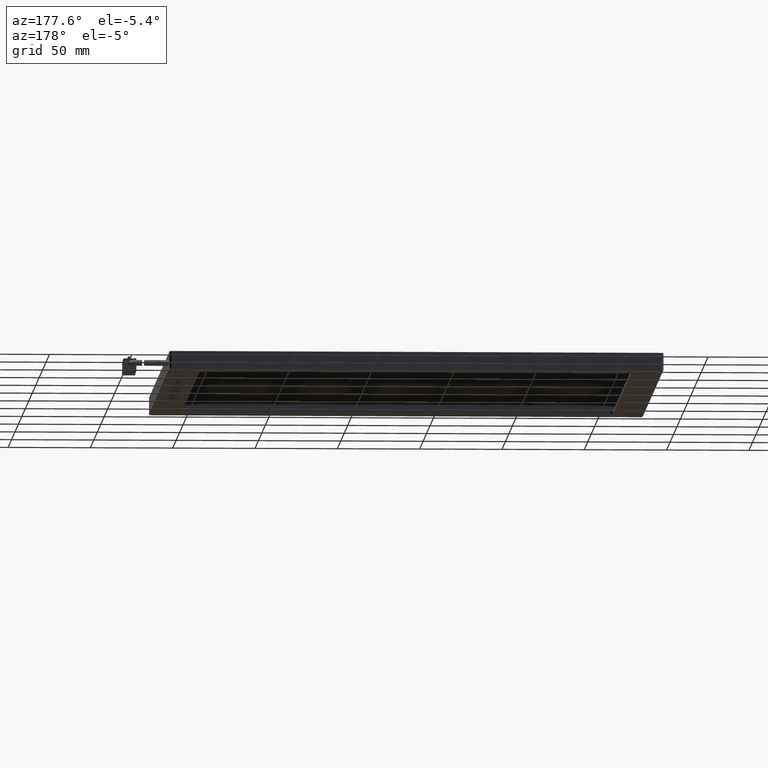
[diagram: clean part render]
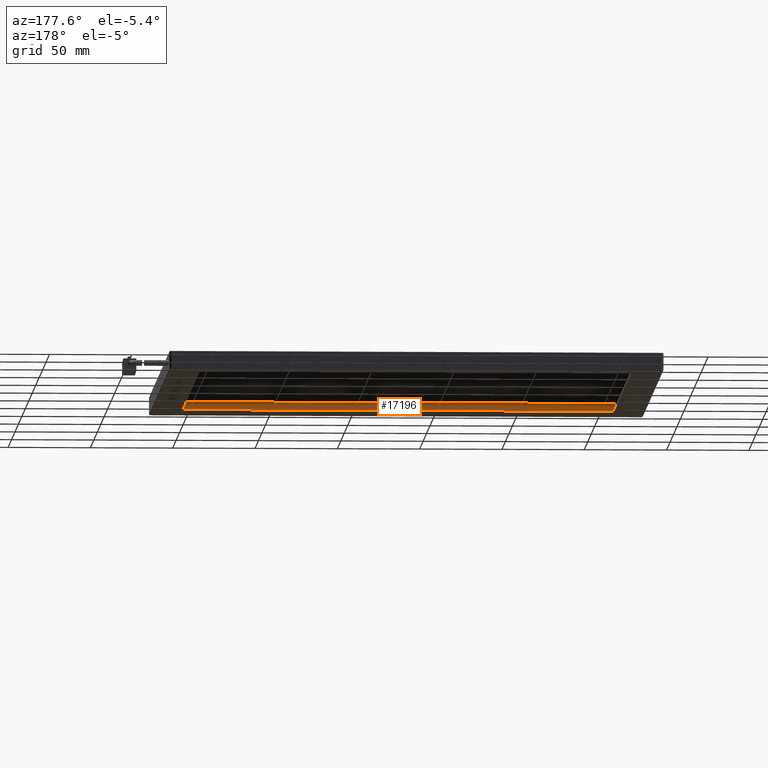
[diagram: same view with one face highlighted and labeled with its STEP entity id]
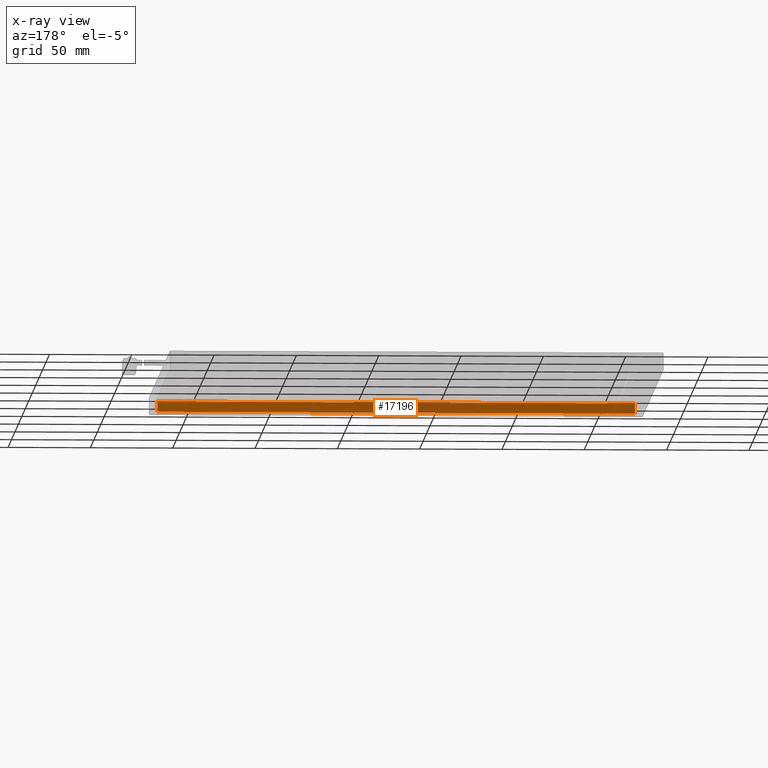
[diagram: x-ray of the same camera — body ghosted, the highlighted face saturated]
A machine part, auxiliary view. The second image highlights one B-rep face of the part: STEP entity #17196.
The next image is the same camera in x-ray: the body ghosted, the highlighted face saturated — about 6% of this face is hidden behind the body in this view.
In plain terms, the highlighted planar face has unit normal (0, -1, 0).
Its self-contained STEP definition (entity closure, byte-faithful):
#904 = PLANE ( 'NONE',  #10650 ) ;
#960 = DIRECTION ( 'NONE',  ( 0.0000000000000000000, -0.0000000000000000000, -1.000000000000000000 ) ) ;
#1209 = LINE ( 'NONE', #9630, #8976 ) ;
#1343 = DIRECTION ( 'NONE',  ( -0.0000000000000000000, 0.0000000000000000000, 1.000000000000000000 ) ) ;
#1470 = CARTESIAN_POINT ( 'NONE',  ( 115.2726522842640000, -106.5461928934010400, -1.200000000000067900 ) ) ;
#1660 = ORIENTED_EDGE ( 'NONE', *, *, #6332, .F. ) ;
#1907 = ORIENTED_EDGE ( 'NONE', *, *, #16496, .T. ) ;
#5096 = VERTEX_POINT ( 'NONE', #6357 ) ;
#5723 = FACE_OUTER_BOUND ( 'NONE', #11679, .T. ) ;
#5797 = ORIENTED_EDGE ( 'NONE', *, *, #10224, .F. ) ;
#6143 = LINE ( 'NONE', #1470, #13978 ) ;
#6332 = EDGE_CURVE ( 'NONE', #17209, #8081, #16325, .T. ) ;
#6357 = CARTESIAN_POINT ( 'NONE',  ( 115.2726522842640000, -106.5461928934010400, 4.999999999999931600 ) ) ;
#7519 = LINE ( 'NONE', #9028, #18792 ) ;
#7565 = CARTESIAN_POINT ( 'NONE',  ( -174.7273477157360200, -106.5461928934010400, -1.200000000000067900 ) ) ;
#8081 = VERTEX_POINT ( 'NONE', #12528 ) ;
#8976 = VECTOR ( 'NONE', #11138, 1000.000000000000000 ) ;
#9028 = CARTESIAN_POINT ( 'NONE',  ( -175.7273477157360200, -106.5461928934010400, -1.200000000000067900 ) ) ;
#9400 = VECTOR ( 'NONE', #17852, 1000.000000000000000 ) ;
#9630 = CARTESIAN_POINT ( 'NONE',  ( -179.7273477157360400, -106.5461928934010400, 4.999999999999931600 ) ) ;
#9722 = DIRECTION ( 'NONE',  ( 0.0000000000000000000, -1.000000000000000000, 0.0000000000000000000 ) ) ;
#10224 = EDGE_CURVE ( 'NONE', #16636, #5096, #6143, .T. ) ;
#10349 = ORIENTED_EDGE ( 'NONE', *, *, #13662, .F. ) ;
#10650 = AXIS2_PLACEMENT_3D ( 'NONE', #18537, #9722, #960 ) ;
#11138 = DIRECTION ( 'NONE',  ( 1.000000000000000000, -0.0000000000000000000, 0.0000000000000000000 ) ) ;
#11231 = CARTESIAN_POINT ( 'NONE',  ( -174.7273477157360200, -106.5461928934010400, 4.999999999999931600 ) ) ;
#11433 = CARTESIAN_POINT ( 'NONE',  ( 115.2726522842640000, -106.5461928934010400, -1.200000000000067900 ) ) ;
#11679 = EDGE_LOOP ( 'NONE', ( #1660, #1907, #5797, #10349 ) ) ;
#12528 = CARTESIAN_POINT ( 'NONE',  ( -174.7273477157360200, -106.5461928934010400, -1.200000000000067900 ) ) ;
#13662 = EDGE_CURVE ( 'NONE', #8081, #16636, #7519, .T. ) ;
#13978 = VECTOR ( 'NONE', #1343, 1000.000000000000000 ) ;
#16325 = LINE ( 'NONE', #7565, #9400 ) ;
#16496 = EDGE_CURVE ( 'NONE', #17209, #5096, #1209, .T. ) ;
#16636 = VERTEX_POINT ( 'NONE', #11433 ) ;
#17196 = ADVANCED_FACE ( 'NONE', ( #5723 ), #904, .F. ) ;
#17209 = VERTEX_POINT ( 'NONE', #11231 ) ;
#17848 = DIRECTION ( 'NONE',  ( 1.000000000000000000, 0.0000000000000000000, 0.0000000000000000000 ) ) ;
#17852 = DIRECTION ( 'NONE',  ( 0.0000000000000000000, -0.0000000000000000000, -1.000000000000000000 ) ) ;
#18537 = CARTESIAN_POINT ( 'NONE',  ( -175.7273477157360200, -106.5461928934010400, -1.200000000000067900 ) ) ;
#18792 = VECTOR ( 'NONE', #17848, 1000.000000000000000 ) ;